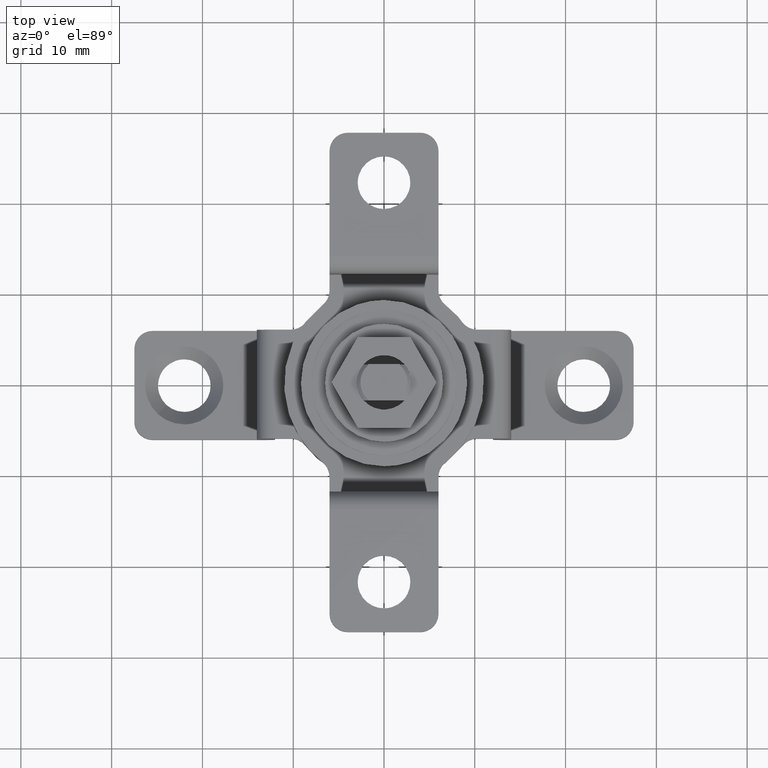
[diagram: clean part render]
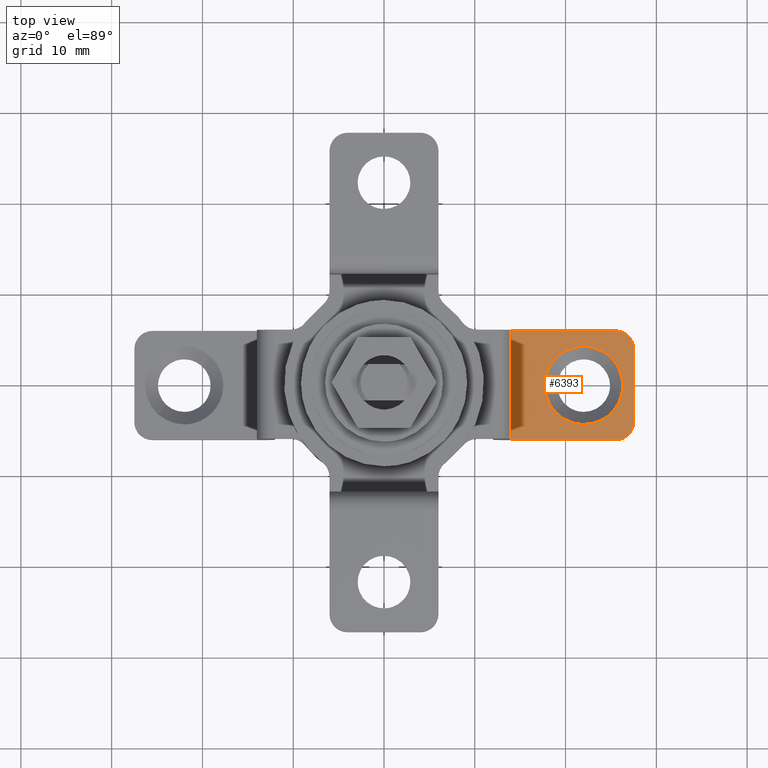
[diagram: same view with one face highlighted and labeled with its STEP entity id]
A machine part, top view. The second image highlights one B-rep face of the part: STEP entity #6393.
In plain terms, the highlighted face is a freeform B-spline surface patch.
Its self-contained STEP definition (entity closure, byte-faithful):
#4490=CARTESIAN_POINT('',(25.119109536792578,2.959924431179561,1.999999880440587));
#4491=VERTEX_POINT('',#4490);
#4497=CARTESIAN_POINT('',(21.999999054059789,4.299999999999801,2.0));
#4498=VERTEX_POINT('',#4497);
#4499=CARTESIAN_POINT('',(25.119109536792578,2.959924431179561,1.999999880440587));
#4500=CARTESIAN_POINT('',(24.893937841449290,3.197280712505855,1.999999889071699));
#4501=CARTESIAN_POINT('',(24.375064935317639,3.631988027480358,1.999999908960746));
#4502=CARTESIAN_POINT('',(23.572375209076959,4.032566405728266,1.999999939728845));
#4503=CARTESIAN_POINT('',(22.763378396624649,4.253154836274383,1.999999970738716));
#4504=CARTESIAN_POINT('',(22.272639700638202,4.300030367715179,1.999999989549340));
#4505=CARTESIAN_POINT('',(21.999999054059789,4.299999999999801,2.0));
#4506=B_SPLINE_CURVE_WITH_KNOTS('',3,(#4499,#4500,#4501,#4502,#4503,#4504,#4505),.UNSPECIFIED.,.F.,.U.,(4,1,1,1,4),(9.673929E-009,0.981510498407431,2.017538965445998,2.671886036567791,3.489810021135958),.UNSPECIFIED.);
#4507=EDGE_CURVE('',#4491,#4498,#4506,.T.);
#4509=CARTESIAN_POINT('',(17.700000000000070,-2.050091E-014,2.0));
#4510=VERTEX_POINT('',#4509);
#4511=CARTESIAN_POINT('',(21.999999054059789,4.299999999999801,2.0));
#4512=CARTESIAN_POINT('',(21.648201124631179,4.300085191528202,1.999999999999998));
#4513=CARTESIAN_POINT('',(21.067785255677109,4.228359306938827,2.000000000000012));
#4514=CARTESIAN_POINT('',(20.365521824783869,3.991527680752869,1.999999999999988));
#4515=CARTESIAN_POINT('',(19.749925517670590,3.686425266740496,2.000000000000017));
#4516=CARTESIAN_POINT('',(19.202868930123980,3.296089466652467,1.999999999999988));
#4517=CARTESIAN_POINT('',(18.611600795830459,2.690155407778338,2.000000000000001));
#4518=CARTESIAN_POINT('',(18.211923232499540,2.084001183309299,1.999999999999998));
#4519=CARTESIAN_POINT('',(17.920350756768169,1.403669982284064,1.999999999999997));
#4520=CARTESIAN_POINT('',(17.745476410834041,0.756341305891448,2.000000000000001));
#4521=CARTESIAN_POINT('',(17.699970452570390,0.263842687430870,2.0));
#4522=CARTESIAN_POINT('',(17.700000000000070,-2.050091E-014,2.0));
#4523=B_SPLINE_CURVE_WITH_KNOTS('',3,(#4511,#4512,#4513,#4514,#4515,#4516,#4517,#4518,#4519,#4520,#4521,#4522),.UNSPECIFIED.,.F.,.U.,(4,1,1,1,1,1,1,1,1,4),(0.000000039456163,1.055376728522870,1.741386564797201,2.216316060716959,3.113400429654110,3.746611376512312,4.749229532347910,5.276928646074337,5.962939519217879,6.754466053212863),.UNSPECIFIED.);
#4524=EDGE_CURVE('',#4498,#4510,#4523,.T.);
#4526=CARTESIAN_POINT('',(18.880890463207439,-2.959924431179588,1.999999880440580));
#4527=VERTEX_POINT('',#4526);
#4528=CARTESIAN_POINT('',(17.700000000000070,-2.050091E-014,2.0));
#4529=CARTESIAN_POINT('',(17.699867699005569,-0.391089698939706,1.999999984202823));
#4530=CARTESIAN_POINT('',(17.795784595255281,-1.088153369778790,1.999999956046516));
#4531=CARTESIAN_POINT('',(18.201328785175271,-2.104672390202467,1.999999914986545));
#4532=CARTESIAN_POINT('',(18.611585458724839,-2.676331654307129,1.999999891895666));
#4533=CARTESIAN_POINT('',(18.880890463207439,-2.959924431179588,1.999999880440580));
#4534=B_SPLINE_CURVE_WITH_KNOTS('',3,(#4528,#4529,#4530,#4531,#4532,#4533),.UNSPECIFIED.,.F.,.U.,(4,1,1,4),(0.000000010549533,1.173240376447866,2.091417007125445,3.264657373004189),.UNSPECIFIED.);
#4535=EDGE_CURVE('',#4510,#4527,#4534,.T.);
#4571=CARTESIAN_POINT('',(22.000000945940268,-4.299999999999843,2.0));
#4572=VERTEX_POINT('',#4571);
#4573=CARTESIAN_POINT('',(18.880890463207439,-2.959924431179588,1.999999880440580));
#4574=CARTESIAN_POINT('',(19.081048439511829,-3.170901324708641,1.999999888112884));
#4575=CARTESIAN_POINT('',(19.482839235969418,-3.516268677646952,1.999999903514034));
#4576=CARTESIAN_POINT('',(20.066336013638281,-3.855203437354995,1.999999925880187));
#4577=CARTESIAN_POINT('',(20.621109335530988,-4.085259661391339,1.999999947145356));
#4578=CARTESIAN_POINT('',(21.236615274379801,-4.253169267026294,1.999999970738463));
#4579=CARTESIAN_POINT('',(21.727360439320091,-4.300029631450910,1.999999989549347));
#4580=CARTESIAN_POINT('',(22.000000945940268,-4.299999999999843,2.0));
#4581=B_SPLINE_CURVE_WITH_KNOTS('',3,(#4573,#4574,#4575,#4576,#4577,#4578,#4579,#4580),.UNSPECIFIED.,.F.,.U.,(4,1,1,1,1,4),(9.671671E-009,0.872452583315549,1.581328385084620,2.017538965445537,2.671886036567735,3.489810021136008),.UNSPECIFIED.);
#4582=EDGE_CURVE('',#4527,#4572,#4581,.T.);
#4584=CARTESIAN_POINT('',(26.299999999999919,-2.050091E-014,2.0));
#4585=VERTEX_POINT('',#4584);
#4586=CARTESIAN_POINT('',(22.000000945940268,-4.299999999999843,2.0));
#4587=CARTESIAN_POINT('',(22.246252547110281,-4.300020447020368,1.999999999999994));
#4588=CARTESIAN_POINT('',(22.756346571082201,-4.256064160931667,2.000000000000010));
#4589=CARTESIAN_POINT('',(23.540801551652130,-4.044204631766087,1.999999999999988));
#4590=CARTESIAN_POINT('',(24.222156757979111,-3.706433445680504,2.000000000000013));
#4591=CARTESIAN_POINT('',(24.819578808832190,-3.268987963894761,1.999999999999980));
#4592=CARTESIAN_POINT('',(25.231534327859670,-2.857031936581359,2.000000000000001));
#4593=CARTESIAN_POINT('',(25.604758147396030,-2.366491488101161,2.000000000000009));
#4594=CARTESIAN_POINT('',(25.877299648439369,-1.892204324635094,1.999999999999994));
#4595=CARTESIAN_POINT('',(26.112871871437179,-1.303131309638276,2.000000000000001));
#4596=CARTESIAN_POINT('',(26.263440255563971,-0.685990770910060,2.0));
#4597=CARTESIAN_POINT('',(26.300014976373902,-0.228664611336153,2.0));
#4598=CARTESIAN_POINT('',(26.299999999999919,-2.050091E-014,2.0));
#4599=B_SPLINE_CURVE_WITH_KNOTS('',3,(#4586,#4587,#4588,#4589,#4590,#4591,#4592,#4593,#4594,#4595,#4596,#4597,#4598),.UNSPECIFIED.,.F.,.U.,(4,1,1,1,1,1,1,1,1,1,4),(0.000000039459674,0.738757414417486,1.530308555206119,2.427388845730929,3.007853844485310,3.746611376512381,4.168759578355409,4.854770451369607,5.382469565189681,6.068470911732421,6.754466053212829),.UNSPECIFIED.);
#4600=EDGE_CURVE('',#4572,#4585,#4599,.T.);
#4602=CARTESIAN_POINT('',(26.299999999999919,-2.050091E-014,2.0));
#4603=CARTESIAN_POINT('',(26.300140838730620,0.391091115091383,1.999999984202761));
#4604=CARTESIAN_POINT('',(26.204206985843228,1.088151150443741,1.999999956046614));
#4605=CARTESIAN_POINT('',(25.798673398980380,2.104673606815926,1.999999914986495));
#4606=CARTESIAN_POINT('',(25.388414387175050,2.676331245176879,1.999999891895691));
#4607=CARTESIAN_POINT('',(25.119109536792578,2.959924431179561,1.999999880440587));
#4608=B_SPLINE_CURVE_WITH_KNOTS('',3,(#4602,#4603,#4604,#4605,#4606,#4607),.UNSPECIFIED.,.F.,.U.,(4,1,1,4),(0.000000010551336,1.173240376448941,2.091417007125950,3.264657373004196),.UNSPECIFIED.);
#4609=EDGE_CURVE('',#4585,#4491,#4608,.T.);
#6057=CARTESIAN_POINT('',(25.500000000000000,-6.0,2.0));
#6058=VERTEX_POINT('',#6057);
#6059=CARTESIAN_POINT('',(27.500000000000000,-4.0,2.0));
#6060=VERTEX_POINT('',#6059);
#6061=CARTESIAN_POINT('',(25.500000000000000,-6.0,2.0));
#6062=CARTESIAN_POINT('',(25.630899306043279,-6.000015947746446,2.000000000000005));
#6063=CARTESIAN_POINT('',(25.900877163825470,-5.973406168602861,1.999999999999994));
#6064=CARTESIAN_POINT('',(26.254429445587231,-5.863784029488726,1.999999999999992));
#6065=CARTESIAN_POINT('',(26.633114818392318,-5.667361946978254,2.000000000000012));
#6066=CARTESIAN_POINT('',(26.944474037319310,-5.408599564033671,1.999999999999998));
#6067=CARTESIAN_POINT('',(27.237863485909671,-5.023020977945777,1.999999999999991));
#6068=CARTESIAN_POINT('',(27.444119406954911,-4.572647736145479,2.000000000000030));
#6069=CARTESIAN_POINT('',(27.500089988477701,-4.196359142077309,1.999999999999976));
#6070=CARTESIAN_POINT('',(27.500000000000000,-4.0,2.0));
#6071=B_SPLINE_CURVE_WITH_KNOTS('',3,(#6061,#6062,#6063,#6064,#6065,#6066,#6067,#6068,#6069,#6070),.UNSPECIFIED.,.F.,.U.,(4,1,1,1,1,1,1,4),(0.000000065954841,0.392698220192148,0.809947736908071,1.104479749260749,1.668964169029679,2.012585521807756,2.552561698461400,3.141612365755624),.UNSPECIFIED.);
#6072=EDGE_CURVE('',#6058,#6060,#6071,.T.);
#6102=CARTESIAN_POINT('',(27.500000000000000,4.0,2.0));
#6103=VERTEX_POINT('',#6102);
#6104=CARTESIAN_POINT('',(25.500000000000000,6.0,2.0));
#6105=VERTEX_POINT('',#6104);
#6106=CARTESIAN_POINT('',(27.500000000000000,4.0,2.0));
#6107=CARTESIAN_POINT('',(27.500045564518729,4.163627109586912,1.999999999999997));
#6108=CARTESIAN_POINT('',(27.466669950598419,4.433583925946644,2.000000000000004));
#6109=CARTESIAN_POINT('',(27.340793582108290,4.806884991324695,1.999999999999998));
#6110=CARTESIAN_POINT('',(27.141064388121841,5.175251325587420,1.999999999999998));
#6111=CARTESIAN_POINT('',(26.854478338926601,5.495365957620291,2.000000000000010));
#6112=CARTESIAN_POINT('',(26.505327155118909,5.741184656368967,1.999999999999987));
#6113=CARTESIAN_POINT('',(26.080775066549808,5.938867385115722,2.000000000000010));
#6114=CARTESIAN_POINT('',(25.729101109834051,6.000172258316771,2.0));
#6115=CARTESIAN_POINT('',(25.500000000000000,6.0,2.0));
#6116=B_SPLINE_CURVE_WITH_KNOTS('',3,(#6106,#6107,#6108,#6109,#6110,#6111,#6112,#6113,#6114,#6115),.UNSPECIFIED.,.F.,.U.,(4,1,1,1,1,1,1,4),(0.000000065932414,0.490869692235512,0.809947736891947,1.178115859327398,1.742605951160186,2.086221841702020,2.454386493643051,3.141612365755725),.UNSPECIFIED.);
#6117=EDGE_CURVE('',#6103,#6105,#6116,.T.);
#6238=CARTESIAN_POINT('',(27.500000000000000,4.0,2.0));
#6239=CARTESIAN_POINT('',(27.500000000000000,-4.0,2.0));
#6240=QUASI_UNIFORM_CURVE('',1,(#6238,#6239),.UNSPECIFIED.,.F.,.U.);
#6241=EDGE_CURVE('',#6103,#6060,#6240,.T.);
#6254=CARTESIAN_POINT('',(14.0,-6.0,2.0));
#6255=VERTEX_POINT('',#6254);
#6261=CARTESIAN_POINT('',(14.0,6.0,2.0));
#6262=VERTEX_POINT('',#6261);
#6263=CARTESIAN_POINT('',(14.0,6.0,2.0));
#6264=CARTESIAN_POINT('',(14.0,-6.0,2.0));
#6265=QUASI_UNIFORM_CURVE('',1,(#6263,#6264),.UNSPECIFIED.,.F.,.U.);
#6266=EDGE_CURVE('',#6262,#6255,#6265,.T.);
#6335=CARTESIAN_POINT('',(14.0,-6.0,2.0));
#6336=CARTESIAN_POINT('',(25.500000000000000,-6.0,2.0));
#6337=QUASI_UNIFORM_CURVE('',1,(#6335,#6336),.UNSPECIFIED.,.F.,.U.);
#6338=EDGE_CURVE('',#6255,#6058,#6337,.T.);
#6360=CARTESIAN_POINT('',(14.0,6.0,2.0));
#6361=CARTESIAN_POINT('',(25.500000000000000,6.0,2.0));
#6362=QUASI_UNIFORM_CURVE('',1,(#6360,#6361),.UNSPECIFIED.,.F.,.U.);
#6363=EDGE_CURVE('',#6262,#6105,#6362,.T.);
#6372=CARTESIAN_POINT('',(28.174324973834381,-6.599399976741672,2.0));
#6373=CARTESIAN_POINT('',(13.325674664067400,-6.599399976741672,2.0));
#6374=CARTESIAN_POINT('',(28.174324973834381,6.599400298606754,2.0));
#6375=CARTESIAN_POINT('',(13.325674664067400,6.599400298606754,2.0));
#6376=B_SPLINE_SURFACE_WITH_KNOTS('',1,1,((#6372,#6374),(#6373,#6375)),.UNSPECIFIED.,.F.,.F.,.U.,(2,2),(2,2),(0.0,14.848650309766979),(0.0,13.198800275348431),.UNSPECIFIED.);
#6377=ORIENTED_EDGE('',*,*,#6241,.F.);
#6378=ORIENTED_EDGE('',*,*,#6117,.T.);
#6379=ORIENTED_EDGE('',*,*,#6363,.F.);
#6380=ORIENTED_EDGE('',*,*,#6266,.T.);
#6381=ORIENTED_EDGE('',*,*,#6338,.T.);
#6382=ORIENTED_EDGE('',*,*,#6072,.T.);
#6383=EDGE_LOOP('',(#6377,#6378,#6379,#6380,#6381,#6382));
#6384=FACE_OUTER_BOUND('',#6383,.T.);
#6385=ORIENTED_EDGE('',*,*,#4524,.F.);
#6386=ORIENTED_EDGE('',*,*,#4507,.F.);
#6387=ORIENTED_EDGE('',*,*,#4609,.F.);
#6388=ORIENTED_EDGE('',*,*,#4600,.F.);
#6389=ORIENTED_EDGE('',*,*,#4582,.F.);
#6390=ORIENTED_EDGE('',*,*,#4535,.F.);
#6391=EDGE_LOOP('',(#6385,#6386,#6387,#6388,#6389,#6390));
#6392=FACE_BOUND('',#6391,.T.);
#6393=ADVANCED_FACE('',(#6384,#6392),#6376,.F.);